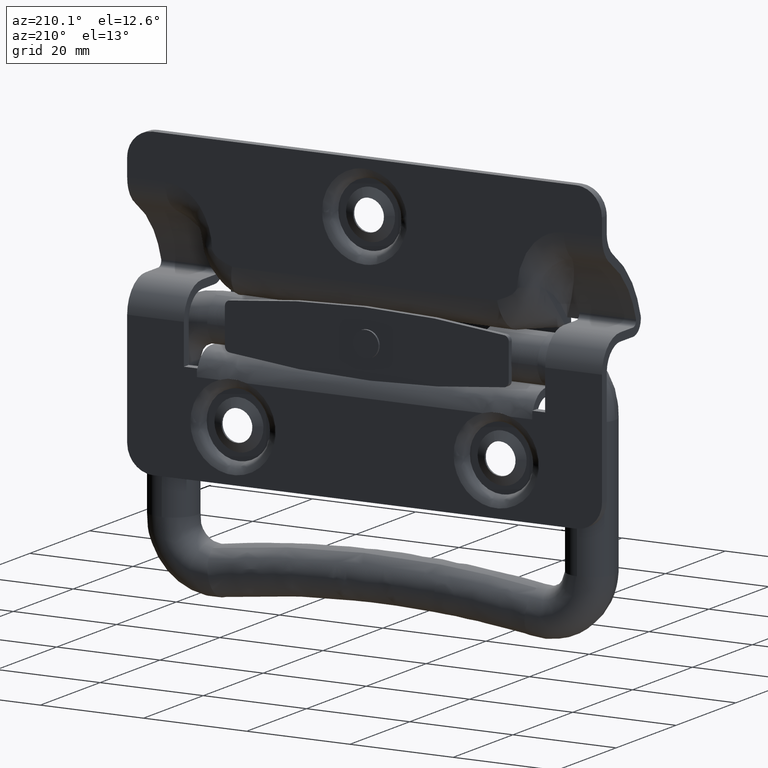
[diagram: clean part render]
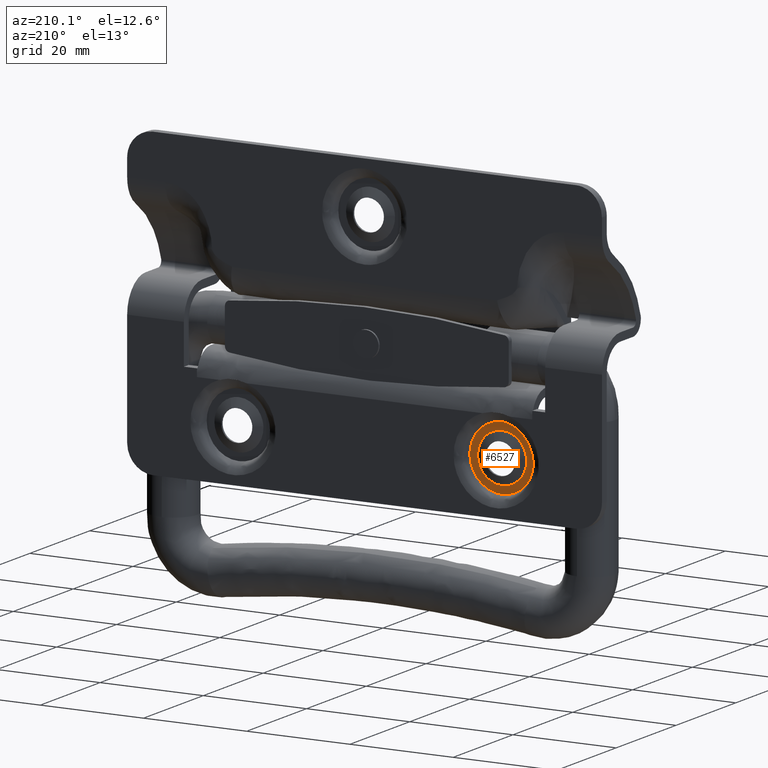
[diagram: same view with one face highlighted and labeled with its STEP entity id]
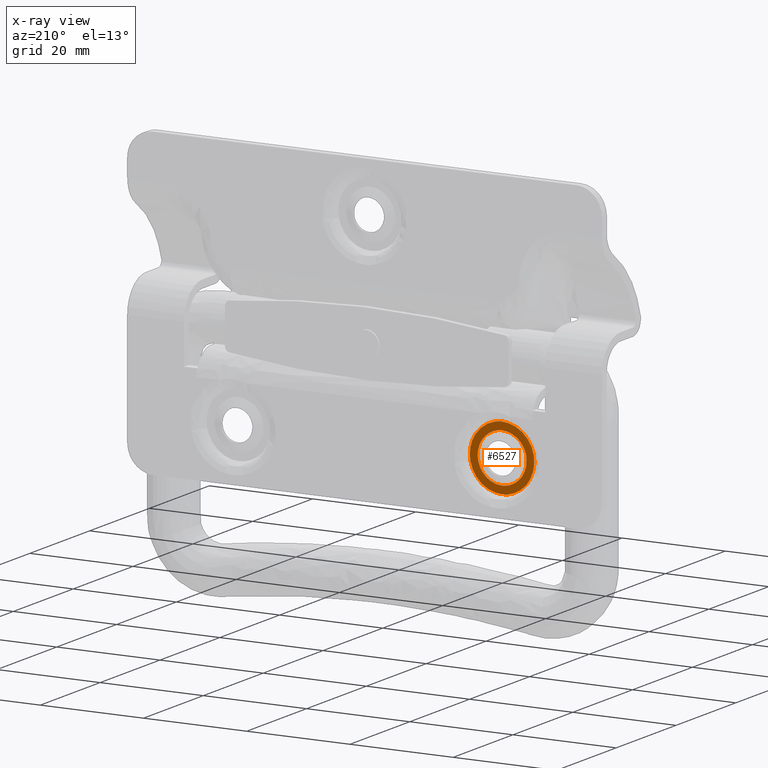
[diagram: x-ray of the same camera — body ghosted, the highlighted face saturated]
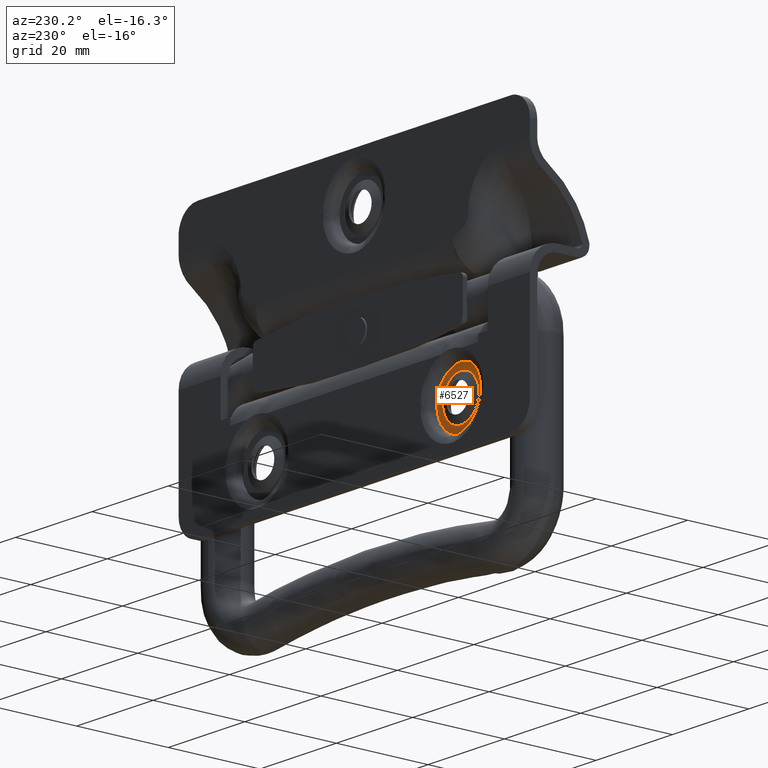
[diagram: same view with one face highlighted and labeled with its STEP entity id]
A machine part, auxiliary view. The second image highlights one B-rep face of the part: STEP entity #6527.
The next image is the same camera in x-ray: the body ghosted, the highlighted face saturated — about 0% of this face is hidden behind the body in this view.
A second angle (auxiliary view) of the same face is appended — the face is thin or edge-on in the first view.
In plain terms, the highlighted face is a freeform B-spline surface patch.
Its self-contained STEP definition (entity closure, byte-faithful):
#3140=CARTESIAN_POINT('',(-30.241140292607732,4.099999999930425,-16.701382436058399));
#3141=VERTEX_POINT('',#3140);
#3147=CARTESIAN_POINT('',(-25.500000000000000,4.100000000000001,-12.241362999999900));
#3148=VERTEX_POINT('',#3147);
#3149=CARTESIAN_POINT('',(-25.500000000000000,4.100000000000001,-12.241362999999900));
#3150=CARTESIAN_POINT('',(-29.968353815648641,4.100000000000001,-12.241362999999900));
#3151=CARTESIAN_POINT('',(-30.241140292607728,4.099999999930425,-16.701382436058399));
#3159=(BOUNDED_CURVE()B_SPLINE_CURVE(2,(#3149,#3150,#3151),.UNSPECIFIED.,.F.,.U.)B_SPLINE_CURVE_WITH_KNOTS((3,3),(0.500000000000000,0.739332962158969),.UNSPECIFIED.)CURVE()GEOMETRIC_REPRESENTATION_ITEM()RATIONAL_B_SPLINE_CURVE((1.0,0.719603993380405,0.976072041495319))REPRESENTATION_ITEM(''));
#3160=EDGE_CURVE('',#3148,#3141,#3159,.T.);
#3162=CARTESIAN_POINT('',(-23.829814621265101,4.099999999984872,-12.544681000911210));
#3163=VERTEX_POINT('',#3162);
#3164=CARTESIAN_POINT('',(-23.829814621265108,4.099999999984872,-12.544681000911213));
#3165=CARTESIAN_POINT('',(-24.637364915783841,4.100000000000001,-12.241362999999904));
#3166=CARTESIAN_POINT('',(-25.500000000000000,4.100000000000001,-12.241362999999900));
#3174=(BOUNDED_CURVE()B_SPLINE_CURVE(2,(#3164,#3165,#3166),.UNSPECIFIED.,.F.,.U.)B_SPLINE_CURVE_WITH_KNOTS((3,3),(0.440284170873218,0.500000000000000),.UNSPECIFIED.)CURVE()GEOMETRIC_REPRESENTATION_ITEM()RATIONAL_B_SPLINE_CURVE((0.893499554604326,0.930038554371771,1.0))REPRESENTATION_ITEM(''));
#3175=EDGE_CURVE('',#3163,#3148,#3174,.T.);
#3225=CARTESIAN_POINT('',(-25.500000000000000,4.100000000000001,-21.741362999999900));
#3226=VERTEX_POINT('',#3225);
#3227=CARTESIAN_POINT('',(-25.500000000000000,4.100000000000001,-21.741362999999900));
#3228=CARTESIAN_POINT('',(-20.749999999999996,4.100000000000000,-21.741362999999900));
#3229=CARTESIAN_POINT('',(-20.750000000000000,4.100000000000001,-16.991362999999900));
#3230=CARTESIAN_POINT('',(-20.749999999999993,4.100000000000001,-13.701467421023017));
#3231=CARTESIAN_POINT('',(-23.829814621265108,4.099999999984872,-12.544681000911213));
#3239=(BOUNDED_CURVE()B_SPLINE_CURVE(2,(#3227,#3228,#3229,#3230,#3231),.UNSPECIFIED.,.F.,.U.)B_SPLINE_CURVE_WITH_KNOTS((3,2,3),(0.0,0.250000000000000,0.440284170873219),.UNSPECIFIED.)CURVE()GEOMETRIC_REPRESENTATION_ITEM()RATIONAL_B_SPLINE_CURVE((1.0,0.707106781186548,1.0,0.777068226814776,0.893499554604326))REPRESENTATION_ITEM(''));
#3240=EDGE_CURVE('',#3226,#3163,#3239,.T.);
#3242=CARTESIAN_POINT('',(-30.241140292607735,4.099999999930425,-16.701382436058399));
#3243=CARTESIAN_POINT('',(-30.250000000000004,4.100000000000001,-16.846237373188089));
#3244=CARTESIAN_POINT('',(-30.250000000000000,4.100000000000001,-16.991362999999900));
#3245=CARTESIAN_POINT('',(-30.250000000000007,4.100000000000000,-21.741362999999900));
#3246=CARTESIAN_POINT('',(-25.500000000000000,4.100000000000001,-21.741362999999900));
#3254=(BOUNDED_CURVE()B_SPLINE_CURVE(2,(#3242,#3243,#3244,#3245,#3246),.UNSPECIFIED.,.F.,.U.)B_SPLINE_CURVE_WITH_KNOTS((3,2,3),(0.739332962158968,0.750000000000000,1.0),.UNSPECIFIED.)CURVE()GEOMETRIC_REPRESENTATION_ITEM()RATIONAL_B_SPLINE_CURVE((0.976072041495316,0.987502787806141,1.0,0.707106781186548,1.0))REPRESENTATION_ITEM(''));
#3255=EDGE_CURVE('',#3141,#3226,#3254,.T.);
#5471=CARTESIAN_POINT('',(-20.368349916406970,4.100000000806156,-13.423637195014370));
#5472=VERTEX_POINT('',#5471);
#5473=CARTESIAN_POINT('',(-25.500000000000000,4.100000000000001,-10.741362999999900));
#5474=VERTEX_POINT('',#5473);
#5475=CARTESIAN_POINT('',(-20.368349916406974,4.100000000806155,-13.423637195014372));
#5476=CARTESIAN_POINT('',(-22.233172869205443,4.100000000000000,-10.741362999999902));
#5477=CARTESIAN_POINT('',(-25.500000000000000,4.100000000000001,-10.741362999999900));
#5485=(BOUNDED_CURVE()B_SPLINE_CURVE(2,(#5475,#5476,#5477),.UNSPECIFIED.,.F.,.U.)B_SPLINE_CURVE_WITH_KNOTS((3,3),(0.348089848798306,0.500000000000000),.UNSPECIFIED.)CURVE()GEOMETRIC_REPRESENTATION_ITEM()RATIONAL_B_SPLINE_CURVE((0.860340605037537,0.822026187376390,1.0))REPRESENTATION_ITEM(''));
#5486=EDGE_CURVE('',#5472,#5474,#5485,.T.);
#5488=CARTESIAN_POINT('',(-25.500000000000000,4.100000000000001,-23.241362999999900));
#5489=VERTEX_POINT('',#5488);
#5490=CARTESIAN_POINT('',(-25.500000000000000,4.100000000000001,-10.741362999999900));
#5491=CARTESIAN_POINT('',(-31.749999999999996,4.100000000000001,-10.741362999999902));
#5492=CARTESIAN_POINT('',(-31.750000000000000,4.100000000000001,-16.991362999999900));
#5493=CARTESIAN_POINT('',(-31.749999999999996,4.100000000000001,-23.241362999999900));
#5494=CARTESIAN_POINT('',(-25.500000000000000,4.100000000000001,-23.241362999999900));
#5502=(BOUNDED_CURVE()B_SPLINE_CURVE(2,(#5490,#5491,#5492,#5493,#5494),.UNSPECIFIED.,.F.,.U.)B_SPLINE_CURVE_WITH_KNOTS((3,2,3),(0.500000000000000,0.750000000000000,1.0),.UNSPECIFIED.)CURVE()GEOMETRIC_REPRESENTATION_ITEM()RATIONAL_B_SPLINE_CURVE((1.0,0.707106781186547,1.0,0.707106781186547,1.0))REPRESENTATION_ITEM(''));
#5503=EDGE_CURVE('',#5474,#5489,#5502,.T.);
#5505=CARTESIAN_POINT('',(-19.250493473727509,4.100000000784338,-17.069900749379300));
#5506=VERTEX_POINT('',#5505);
#5507=CARTESIAN_POINT('',(-25.500000000000000,4.100000000000001,-23.241362999999900));
#5508=CARTESIAN_POINT('',(-19.328050438293506,4.100000000000001,-23.241362999999900));
#5509=CARTESIAN_POINT('',(-19.250493473727506,4.100000000784338,-17.069900749379308));
#5517=(BOUNDED_CURVE()B_SPLINE_CURVE(2,(#5507,#5508,#5509),.UNSPECIFIED.,.F.,.U.)B_SPLINE_CURVE_WITH_KNOTS((3,3),(0.0,0.247784295915625),.UNSPECIFIED.)CURVE()GEOMETRIC_REPRESENTATION_ITEM()RATIONAL_B_SPLINE_CURVE((1.0,0.709702639991391,0.994854295629964))REPRESENTATION_ITEM(''));
#5518=EDGE_CURVE('',#5489,#5506,#5517,.T.);
#5619=CARTESIAN_POINT('',(-19.250493473727509,4.100000000784338,-17.069900749379300));
#5620=CARTESIAN_POINT('',(-19.249999999999996,4.100000000000000,-17.030633425057676));
#5621=CARTESIAN_POINT('',(-19.250000000000000,4.100000000000001,-16.991362999999900));
#5622=CARTESIAN_POINT('',(-19.250000000000000,4.100000000000001,-15.032219456013149));
#5623=CARTESIAN_POINT('',(-20.368349916406974,4.100000000806155,-13.423637195014372));
#5631=(BOUNDED_CURVE()B_SPLINE_CURVE(2,(#5619,#5620,#5621,#5622,#5623),.UNSPECIFIED.,.F.,.U.)B_SPLINE_CURVE_WITH_KNOTS((3,2,3),(0.247784295915625,0.250000000000000,0.348089848798306),.UNSPECIFIED.)CURVE()GEOMETRIC_REPRESENTATION_ITEM()RATIONAL_B_SPLINE_CURVE((0.994854295629964,0.997404141195157,1.0,0.885080593810157,0.860340605037537))REPRESENTATION_ITEM(''));
#5632=EDGE_CURVE('',#5506,#5472,#5631,.T.);
#6510=CARTESIAN_POINT('',(-32.374364750977207,4.100000000000001,-10.116987554863099));
#6511=CARTESIAN_POINT('',(-32.374364750977207,4.100000000000001,-23.865738333378001));
#6512=CARTESIAN_POINT('',(-18.625839614383938,4.100000000000001,-10.116987554863099));
#6513=CARTESIAN_POINT('',(-18.625839614383938,4.100000000000001,-23.865738333378001));
#6514=B_SPLINE_SURFACE_WITH_KNOTS('',1,1,((#6510,#6512),(#6511,#6513)),.UNSPECIFIED.,.F.,.F.,.U.,(2,2),(2,2),(0.0,13.748750778514900),(0.0,13.748525136593271),.UNSPECIFIED.);
#6515=ORIENTED_EDGE('',*,*,#5503,.F.);
#6516=ORIENTED_EDGE('',*,*,#5486,.F.);
#6517=ORIENTED_EDGE('',*,*,#5632,.F.);
#6518=ORIENTED_EDGE('',*,*,#5518,.F.);
#6519=EDGE_LOOP('',(#6515,#6516,#6517,#6518));
#6520=FACE_OUTER_BOUND('',#6519,.T.);
#6521=ORIENTED_EDGE('',*,*,#3160,.T.);
#6522=ORIENTED_EDGE('',*,*,#3255,.T.);
#6523=ORIENTED_EDGE('',*,*,#3240,.T.);
#6524=ORIENTED_EDGE('',*,*,#3175,.T.);
#6525=EDGE_LOOP('',(#6521,#6522,#6523,#6524));
#6526=FACE_BOUND('',#6525,.T.);
#6527=ADVANCED_FACE('',(#6520,#6526),#6514,.F.);